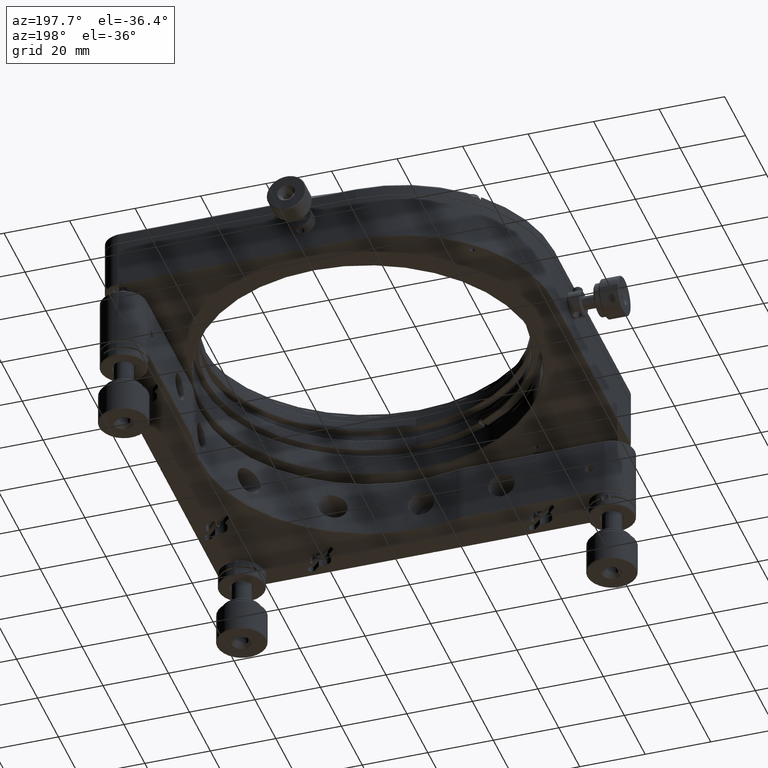
[diagram: clean part render]
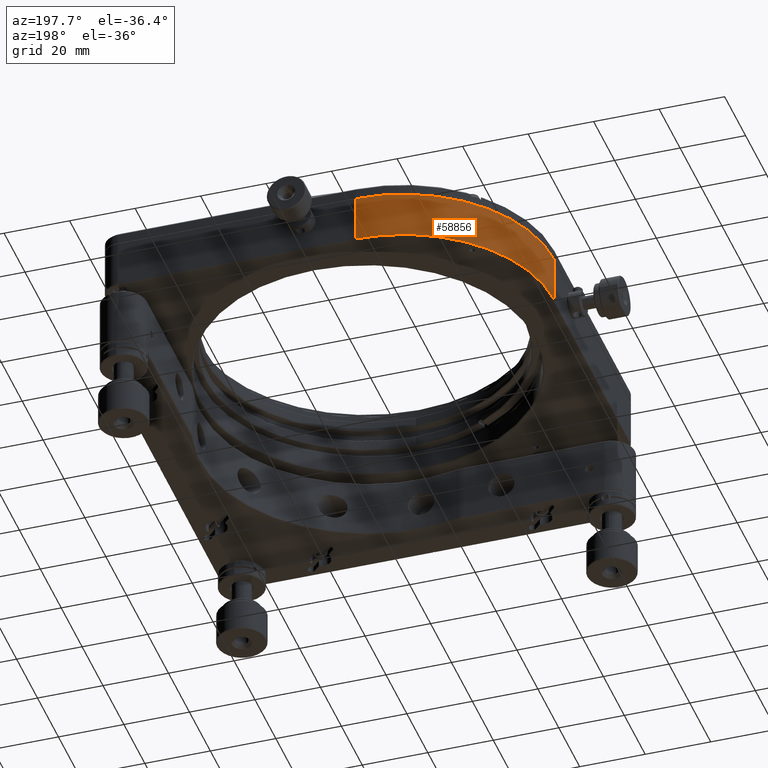
[diagram: same view with one face highlighted and labeled with its STEP entity id]
A machine part, auxiliary view. The second image highlights one B-rep face of the part: STEP entity #58856.
In plain terms, the highlighted cylindrical surface (partial cylindrical patch) has radius 46 mm, axis along (0, 0, -1).
Its self-contained STEP definition (entity closure, byte-faithful):
#1034 = LINE ( 'NONE', #84688, #46372 ) ;
#7873 = EDGE_LOOP ( 'NONE', ( #13196, #122755, #33750, #72582 ) ) ;
#9782 = DIRECTION ( 'NONE',  ( 3.760505654914396745E-17, 1.803624211640625410E-17, -1.000000000000000000 ) ) ;
#13196 = ORIENTED_EDGE ( 'NONE', *, *, #98761, .T. ) ;
#15587 = DIRECTION ( 'NONE',  ( 3.760505654914396745E-17, 1.803624211640625410E-17, -1.000000000000000000 ) ) ;
#16811 = CARTESIAN_POINT ( 'NONE',  ( -62.00000000000116529, 15.99999999999933387, 27.49999999999998224 ) ) ;
#18438 = DIRECTION ( 'NONE',  ( -1.000000000000000000, 0.000000000000000000, 0.000000000000000000 ) ) ;
#20443 = EDGE_CURVE ( 'NONE', #129646, #100977, #50143, .T. ) ;
#33750 = ORIENTED_EDGE ( 'NONE', *, *, #142989, .T. ) ;
#46372 = VECTOR ( 'NONE', #15587, 1000.000000000000000 ) ;
#47802 = VERTEX_POINT ( 'NONE', #119025 ) ;
#50143 = CIRCLE ( 'NONE', #140815, 46.00000000000000000 ) ;
#52078 = LINE ( 'NONE', #16811, #83403 ) ;
#57372 = DIRECTION ( 'NONE',  ( -1.000000000000000000, 0.000000000000000000, 0.000000000000000000 ) ) ;
#58856 = ADVANCED_FACE ( 'NONE', ( #122847 ), #81165, .T. ) ;
#64516 = CIRCLE ( 'NONE', #150252, 46.00000000000000000 ) ;
#72582 = ORIENTED_EDGE ( 'NONE', *, *, #20443, .F. ) ;
#81165 = CYLINDRICAL_SURFACE ( 'NONE', #151097, 46.00000000000000000 ) ;
#81353 = DIRECTION ( 'NONE',  ( 0.000000000000000000, 1.000000000000000000, 7.542275982507857147E-17 ) ) ;
#83403 = VECTOR ( 'NONE', #110429, 1000.000000000000000 ) ;
#84688 = CARTESIAN_POINT ( 'NONE',  ( -16.00000000000116529, 61.99999999999933209, 27.49999999999998224 ) ) ;
#92088 = CARTESIAN_POINT ( 'NONE',  ( -16.00000000000116174, 15.99999999999933387, 12.75000000000000355 ) ) ;
#92636 = EDGE_CURVE ( 'NONE', #113054, #47802, #64516, .T. ) ;
#98761 = EDGE_CURVE ( 'NONE', #129646, #113054, #52078, .T. ) ;
#100977 = VERTEX_POINT ( 'NONE', #113765 ) ;
#110429 = DIRECTION ( 'NONE',  ( -3.760505654914397361E-17, -0.000000000000000000, 1.000000000000000000 ) ) ;
#113054 = VERTEX_POINT ( 'NONE', #120839 ) ;
#113765 = CARTESIAN_POINT ( 'NONE',  ( -16.00000000000116529, 61.99999999999933209, 12.75000000000000355 ) ) ;
#119025 = CARTESIAN_POINT ( 'NONE',  ( -16.00000000000116529, 61.99999999999933209, 27.24999999999998934 ) ) ;
#120839 = CARTESIAN_POINT ( 'NONE',  ( -62.00000000000116529, 15.99999999999933387, 27.24999999999998934 ) ) ;
#122755 = ORIENTED_EDGE ( 'NONE', *, *, #92636, .T. ) ;
#122847 = FACE_OUTER_BOUND ( 'NONE', #7873, .T. ) ;
#123552 = DIRECTION ( 'NONE',  ( 3.760505654914396745E-17, 1.803624211640625410E-17, -1.000000000000000000 ) ) ;
#125845 = DIRECTION ( 'NONE',  ( 3.760505654914396745E-17, 1.803624211640625410E-17, -1.000000000000000000 ) ) ;
#129646 = VERTEX_POINT ( 'NONE', #130704 ) ;
#130704 = CARTESIAN_POINT ( 'NONE',  ( -62.00000000000116529, 15.99999999999933387, 12.75000000000000178 ) ) ;
#137302 = CARTESIAN_POINT ( 'NONE',  ( -16.00000000000116174, 15.99999999999933387, 27.24999999999998934 ) ) ;
#140815 = AXIS2_PLACEMENT_3D ( 'NONE', #92088, #125845, #81353 ) ;
#142989 = EDGE_CURVE ( 'NONE', #47802, #100977, #1034, .T. ) ;
#150252 = AXIS2_PLACEMENT_3D ( 'NONE', #137302, #123552, #18438 ) ;
#150959 = CARTESIAN_POINT ( 'NONE',  ( -16.00000000000116174, 15.99999999999933387, 27.49999999999998224 ) ) ;
#151097 = AXIS2_PLACEMENT_3D ( 'NONE', #150959, #9782, #57372 ) ;